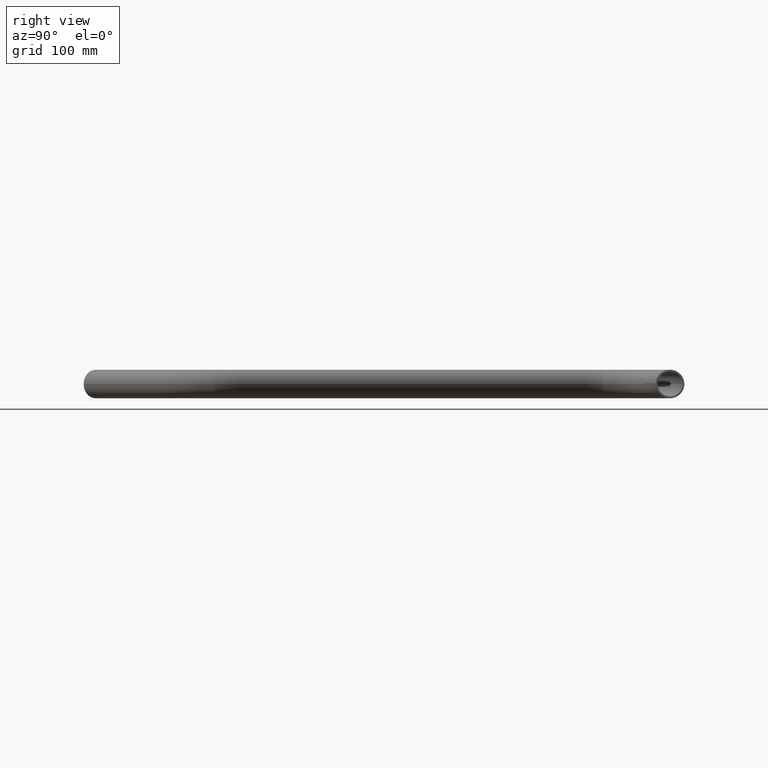
[diagram: clean part render]
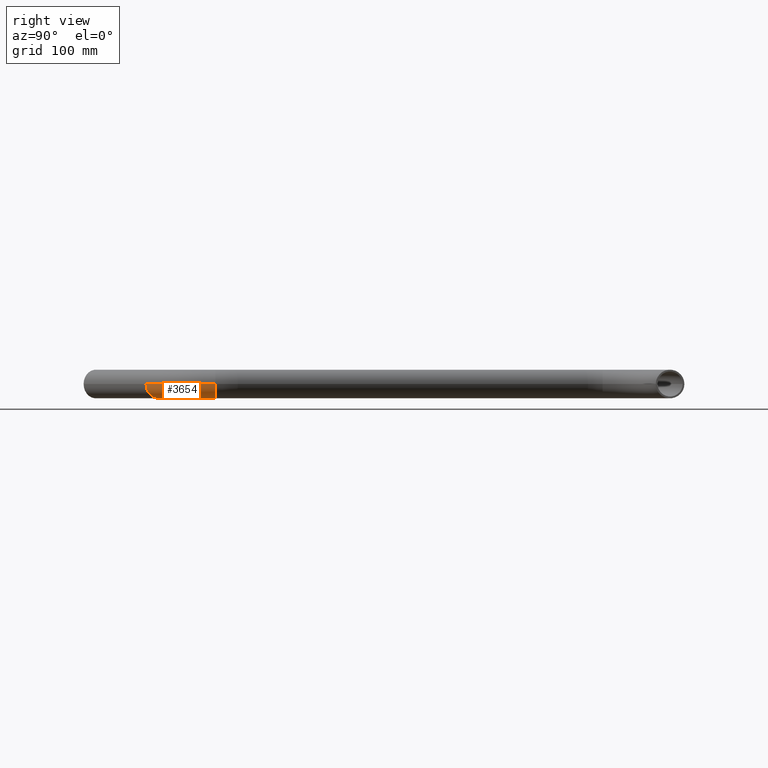
[diagram: same view with one face highlighted and labeled with its STEP entity id]
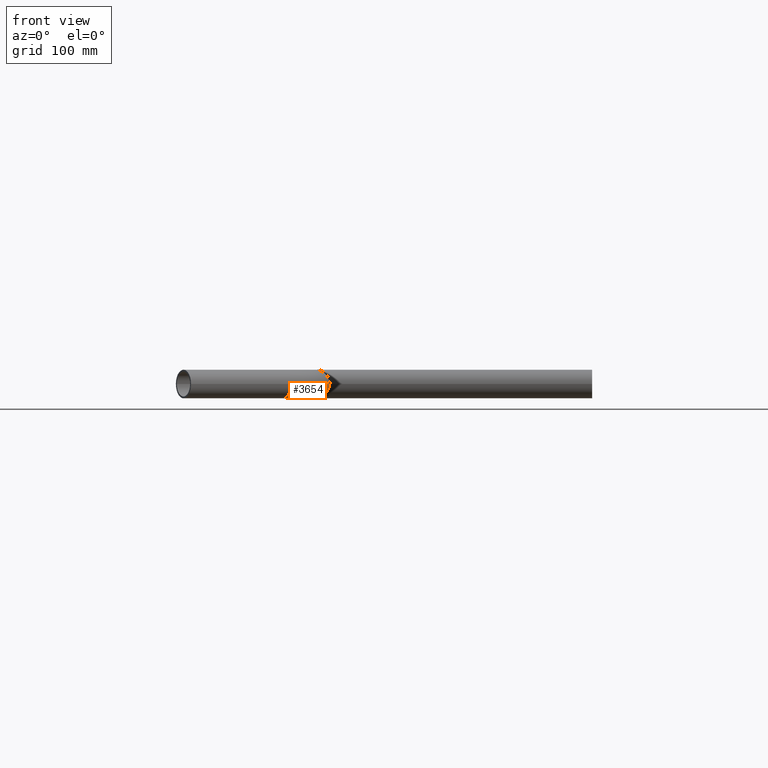
[diagram: same view with one face highlighted and labeled with its STEP entity id]
A machine part, right view. The second image highlights one B-rep face of the part: STEP entity #3654.
A second angle (front view) of the same face is appended — the face is thin or edge-on in the first view.
In plain terms, the highlighted toroidal blend (fillet) surface has major radius 100 mm and minor (blend) radius 21.2 mm.
Its self-contained STEP definition (entity closure, byte-faithful):
#29 = CARTESIAN_POINT ( 'NONE',  ( 173.9150898616997600, 177.3523448949054900, -2.596251214192389600E-015 ) ) ;
#48 = CARTESIAN_POINT ( 'NONE',  ( 95.11508986169970100, 177.3523448949054900, 0.0000000000000000000 ) ) ;
#166 = VERTEX_POINT ( 'NONE', #29 ) ;
#238 = EDGE_LOOP ( 'NONE', ( #670, #12033, #13281, #5690 ) ) ;
#272 = AXIS2_PLACEMENT_3D ( 'NONE', #48, #7350, #1147 ) ;
#670 = ORIENTED_EDGE ( 'NONE', *, *, #9244, .F. ) ;
#917 = AXIS2_PLACEMENT_3D ( 'NONE', #5599, #12831, #6646 ) ;
#1147 = DIRECTION ( 'NONE',  ( 1.000000000000000000, 0.0000000000000000000, 0.0000000000000000000 ) ) ;
#1241 = EDGE_CURVE ( 'NONE', #2740, #1973, #10161, .T. ) ;
#1667 = CARTESIAN_POINT ( 'NONE',  ( 95.11508986169970100, 177.3523448949054900, 0.0000000000000000000 ) ) ;
#1738 = CIRCLE ( 'NONE', #7911, 78.80000000000006800 ) ;
#1973 = VERTEX_POINT ( 'NONE', #10220 ) ;
#2740 = VERTEX_POINT ( 'NONE', #7142 ) ;
#3092 = AXIS2_PLACEMENT_3D ( 'NONE', #4344, #11552, #5367 ) ;
#3645 = AXIS2_PLACEMENT_3D ( 'NONE', #1667, #4794, #12025 ) ;
#3654 = ADVANCED_FACE ( 'NONE', ( #5179 ), #5491, .T. ) ;
#4344 = CARTESIAN_POINT ( 'NONE',  ( 195.1150898616997700, 177.3523448949054900, 0.0000000000000000000 ) ) ;
#4662 = CARTESIAN_POINT ( 'NONE',  ( 216.3150898616997600, 177.3523448949054900, 0.0000000000000000000 ) ) ;
#4794 = DIRECTION ( 'NONE',  ( 0.0000000000000000000, 0.0000000000000000000, 1.000000000000000000 ) ) ;
#5179 = FACE_OUTER_BOUND ( 'NONE', #238, .T. ) ;
#5367 = DIRECTION ( 'NONE',  ( 0.0000000000000000000, 0.0000000000000000000, -1.000000000000000000 ) ) ;
#5491 = TOROIDAL_SURFACE ( 'NONE', #3645, 100.0000000000000600, 21.20000000000000300 ) ;
#5599 = CARTESIAN_POINT ( 'NONE',  ( 148.1070162850268200, 92.54753527926693800, 0.0000000000000000000 ) ) ;
#5676 = VERTEX_POINT ( 'NONE', #4662 ) ;
#5680 = DIRECTION ( 'NONE',  ( 0.0000000000000000000, 0.0000000000000000000, 1.000000000000000000 ) ) ;
#5690 = ORIENTED_EDGE ( 'NONE', *, *, #9297, .T. ) ;
#5942 = EDGE_CURVE ( 'NONE', #1973, #166, #1738, .T. ) ;
#6636 = CIRCLE ( 'NONE', #3092, 21.20000000000000300 ) ;
#6646 = DIRECTION ( 'NONE',  ( 0.5299192642332706300, -0.8480480961563848800, 0.0000000000000000000 ) ) ;
#7142 = CARTESIAN_POINT ( 'NONE',  ( 159.3413046867721600, 74.56891564075159800, 0.0000000000000000000 ) ) ;
#7350 = DIRECTION ( 'NONE',  ( 0.0000000000000000000, 0.0000000000000000000, 1.000000000000000000 ) ) ;
#7911 = AXIS2_PLACEMENT_3D ( 'NONE', #11877, #5680, #12905 ) ;
#9244 = EDGE_CURVE ( 'NONE', #2740, #5676, #11491, .T. ) ;
#9297 = EDGE_CURVE ( 'NONE', #166, #5676, #6636, .T. ) ;
#10161 = CIRCLE ( 'NONE', #917, 21.20000000000000600 ) ;
#10220 = CARTESIAN_POINT ( 'NONE',  ( 136.8727278832814700, 110.5261549177822900, 2.596251214192389200E-015 ) ) ;
#11491 = CIRCLE ( 'NONE', #272, 121.2000000000000600 ) ;
#11552 = DIRECTION ( 'NONE',  ( 0.0000000000000000000, -1.000000000000000000, 0.0000000000000000000 ) ) ;
#11877 = CARTESIAN_POINT ( 'NONE',  ( 95.11508986169970100, 177.3523448949054900, -2.596251214192389200E-015 ) ) ;
#12025 = DIRECTION ( 'NONE',  ( 1.000000000000000000, 0.0000000000000000000, 0.0000000000000000000 ) ) ;
#12033 = ORIENTED_EDGE ( 'NONE', *, *, #1241, .T. ) ;
#12831 = DIRECTION ( 'NONE',  ( 0.8480480961563847700, 0.5299192642332709600, -0.0000000000000000000 ) ) ;
#12905 = DIRECTION ( 'NONE',  ( 1.000000000000000000, 0.0000000000000000000, 0.0000000000000000000 ) ) ;
#13281 = ORIENTED_EDGE ( 'NONE', *, *, #5942, .T. ) ;